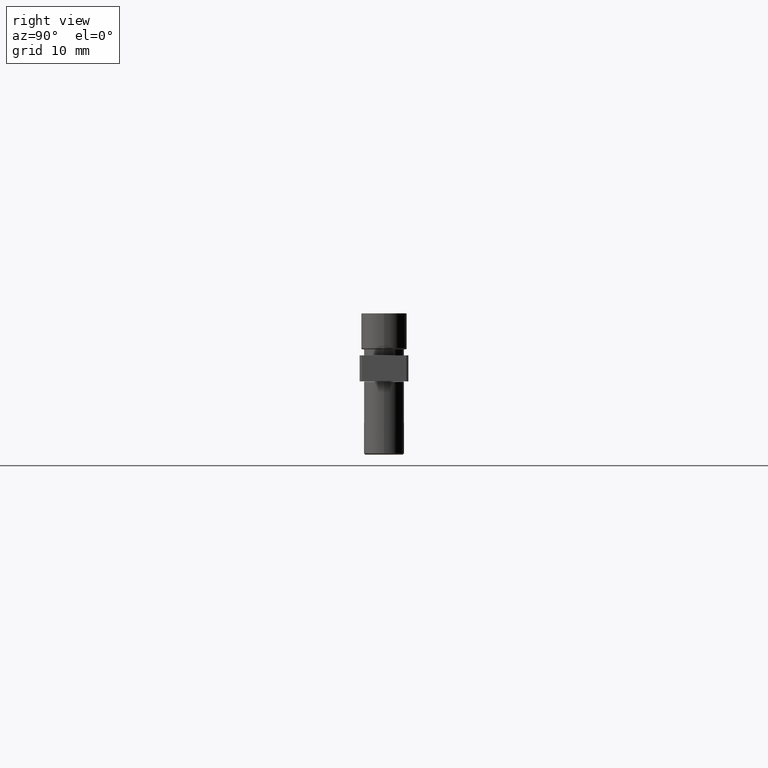
[diagram: clean part render]
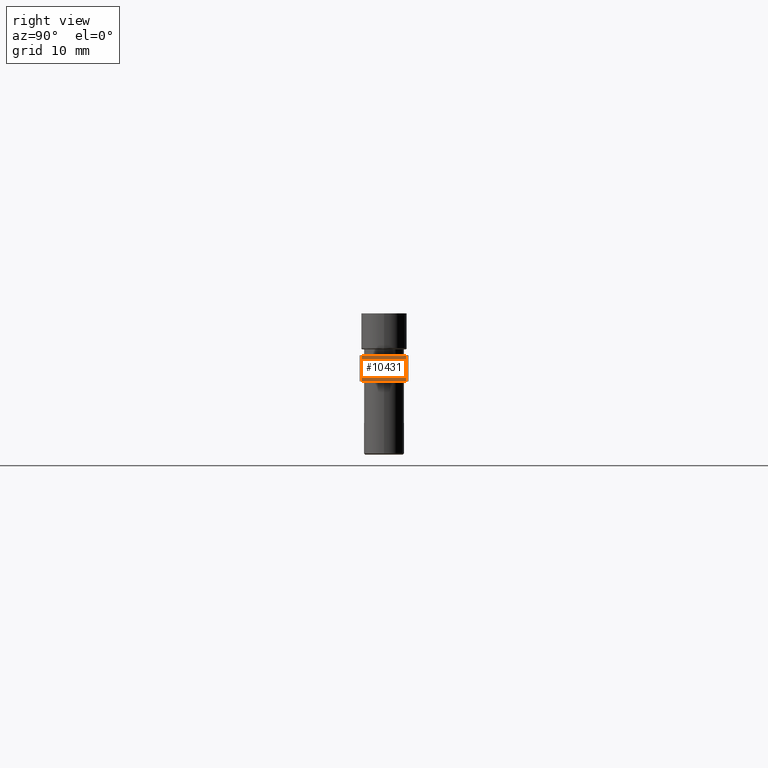
[diagram: same view with one face highlighted and labeled with its STEP entity id]
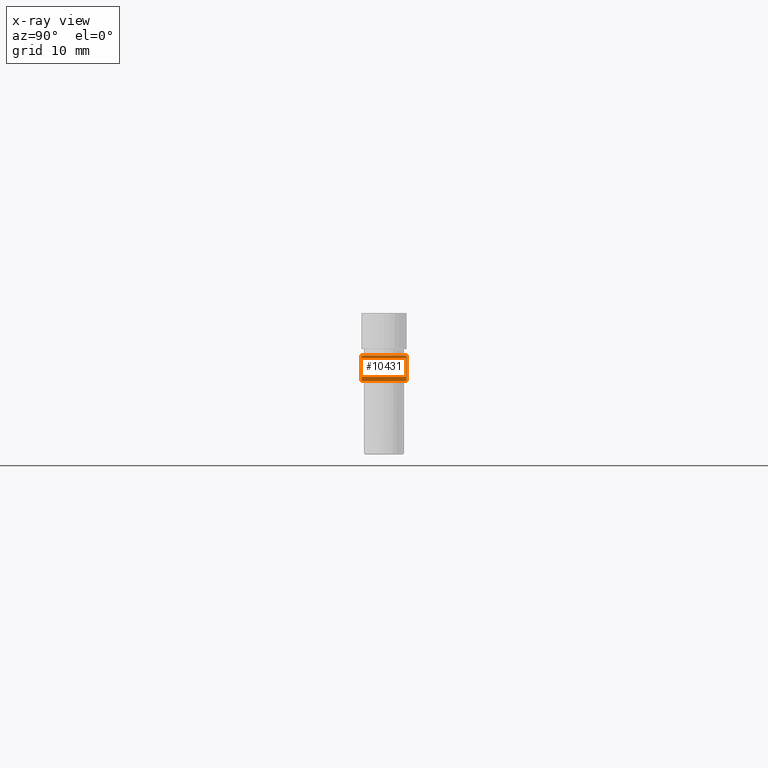
[diagram: x-ray of the same camera — body ghosted, the highlighted face saturated]
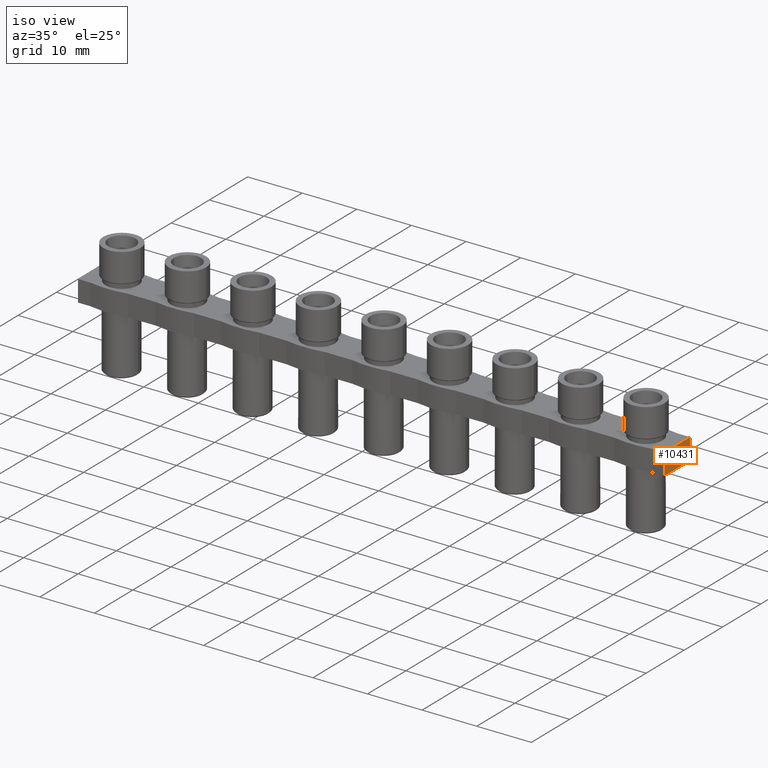
[diagram: same view with one face highlighted and labeled with its STEP entity id]
A machine part, right view. The second image highlights one B-rep face of the part: STEP entity #10431.
The next image is the same camera in x-ray: the body ghosted, the highlighted face saturated — about 0% of this face is hidden behind the body in this view.
A second angle (iso view) of the same face is appended — the face is thin or edge-on in the first view.
In plain terms, the highlighted planar face has unit normal (-1, 0, 0).
Its self-contained STEP definition (entity closure, byte-faithful):
#687 = CARTESIAN_POINT ( 'NONE',  ( 17.69999999999921800, 3.350000000000087100, -0.9000000000000014700 ) ) ;
#710 = CARTESIAN_POINT ( 'NONE',  ( 17.69999999999921800, 3.350000000000085400, -4.800000000000001600 ) ) ;
#714 = CARTESIAN_POINT ( 'NONE',  ( 17.69999999999921800, -3.349999999999913900, -0.9000000000000014700 ) ) ;
#732 = CARTESIAN_POINT ( 'NONE',  ( 17.69999999999921800, -3.349999999999912600, -4.800000000000001600 ) ) ;
#1355 = EDGE_CURVE ( 'NONE', #5316, #5294, #9251, .T. ) ;
#1394 = EDGE_CURVE ( 'NONE', #5294, #5277, #9386, .T. ) ;
#1412 = EDGE_CURVE ( 'NONE', #5288, #5277, #9446, .T. ) ;
#4695 = VECTOR ( 'NONE', #12373, 1000.000000000000000 ) ;
#4837 = EDGE_LOOP ( 'NONE', ( #5597, #5686, #5650, #5598 ) ) ;
#5277 = VERTEX_POINT ( 'NONE', #732 ) ;
#5288 = VERTEX_POINT ( 'NONE', #714 ) ;
#5294 = VERTEX_POINT ( 'NONE', #710 ) ;
#5316 = VERTEX_POINT ( 'NONE', #687 ) ;
#5597 = ORIENTED_EDGE ( 'NONE', *, *, #1394, .F. ) ;
#5598 = ORIENTED_EDGE ( 'NONE', *, *, #1412, .T. ) ;
#5650 = ORIENTED_EDGE ( 'NONE', *, *, #11369, .F. ) ;
#5686 = ORIENTED_EDGE ( 'NONE', *, *, #1355, .F. ) ;
#8816 = AXIS2_PLACEMENT_3D ( 'NONE', #13147, #13119, #13154 ) ;
#9232 = DIRECTION ( 'NONE',  ( 0.0000000000000000000, 0.0000000000000000000, -1.000000000000000000 ) ) ;
#9251 = LINE ( 'NONE', #9266, #9832 ) ;
#9266 = CARTESIAN_POINT ( 'NONE',  ( 17.69999999999921800, 3.350000000000087100, -0.9000000000000014700 ) ) ;
#9348 = CARTESIAN_POINT ( 'NONE',  ( 17.69999999999921800, 3.350000000000086700, -4.800000000000002500 ) ) ;
#9386 = LINE ( 'NONE', #9348, #9811 ) ;
#9401 = DIRECTION ( 'NONE',  ( 0.0000000000000000000, -1.000000000000000000, 0.0000000000000000000 ) ) ;
#9425 = CARTESIAN_POINT ( 'NONE',  ( 17.69999999999921800, -3.349999999999914400, -15.81000000015502300 ) ) ;
#9437 = DIRECTION ( 'NONE',  ( 0.0000000000000000000, 0.0000000000000000000, -1.000000000000000000 ) ) ;
#9446 = LINE ( 'NONE', #9425, #9795 ) ;
#9795 = VECTOR ( 'NONE', #9437, 1000.000000000000000 ) ;
#9811 = VECTOR ( 'NONE', #9401, 1000.000000000000000 ) ;
#9832 = VECTOR ( 'NONE', #9232, 1000.000000000000000 ) ;
#10431 = ADVANCED_FACE ( 'NONE', ( #13128 ), #13093, .F. ) ;
#11369 = EDGE_CURVE ( 'NONE', #5288, #5316, #12345, .T. ) ;
#12338 = CARTESIAN_POINT ( 'NONE',  ( 17.69999999999921800, -3.349999999999924100, -0.9000000000000014700 ) ) ;
#12345 = LINE ( 'NONE', #12338, #4695 ) ;
#12373 = DIRECTION ( 'NONE',  ( 0.0000000000000000000, 1.000000000000000000, 0.0000000000000000000 ) ) ;
#13093 = PLANE ( 'NONE',  #8816 ) ;
#13119 = DIRECTION ( 'NONE',  ( -1.000000000000000000, 0.0000000000000000000, 0.0000000000000000000 ) ) ;
#13128 = FACE_OUTER_BOUND ( 'NONE', #4837, .T. ) ;
#13147 = CARTESIAN_POINT ( 'NONE',  ( 17.69999999999921800, 3.350000000000086700, -15.81000000015502300 ) ) ;
#13154 = DIRECTION ( 'NONE',  ( 0.0000000000000000000, 0.0000000000000000000, 1.000000000000000000 ) ) ;